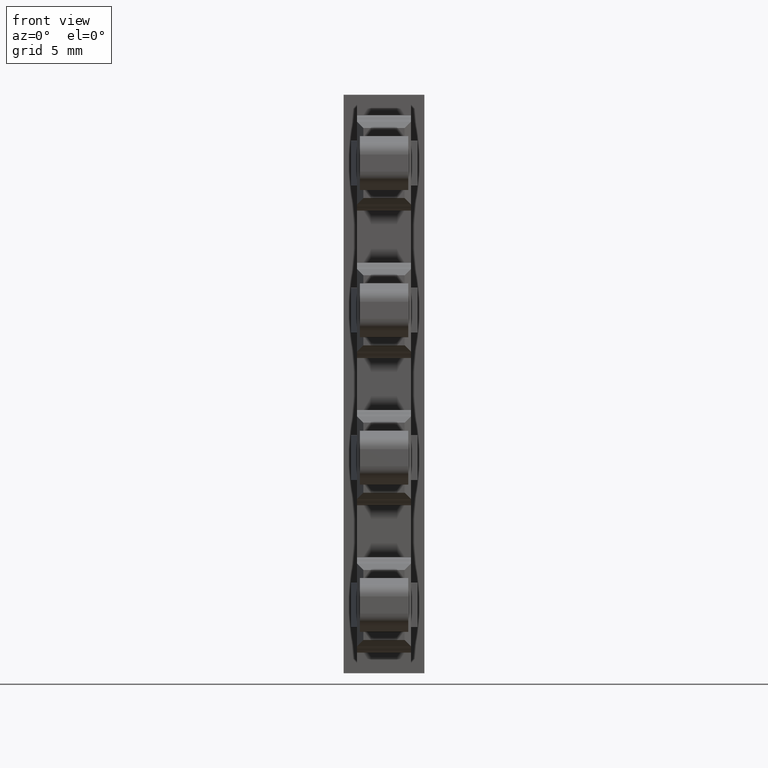
[diagram: clean part render]
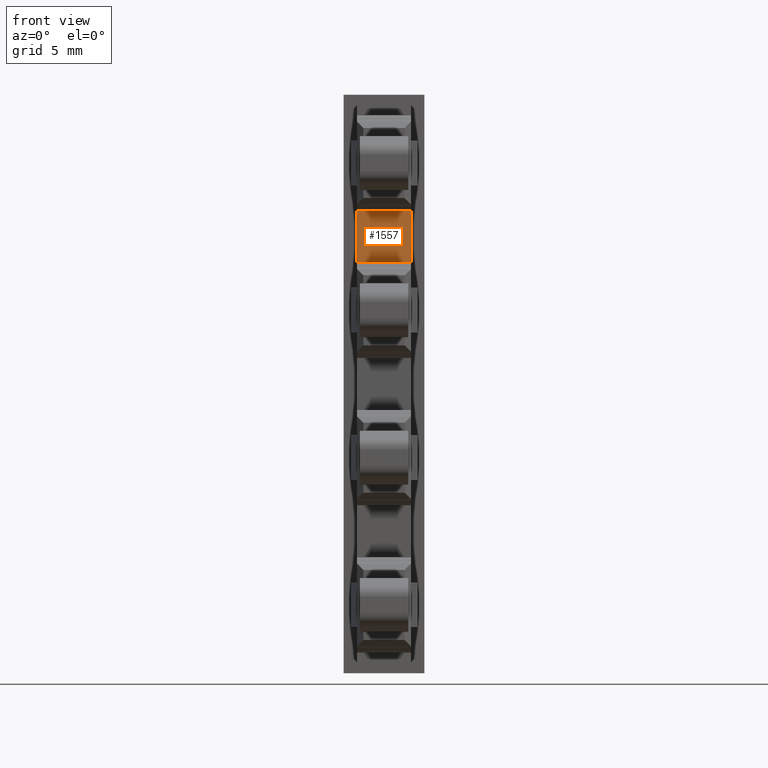
[diagram: same view with one face highlighted and labeled with its STEP entity id]
A machine part, front view. The second image highlights one B-rep face of the part: STEP entity #1557.
In plain terms, the highlighted planar face has unit normal (0, -1, 0).
Its self-contained STEP definition (entity closure, byte-faithful):
#186 = EDGE_LOOP ( 'NONE', ( #673, #680, #695, #671 ) ) ;
#248 = VERTEX_POINT ( 'NONE', #2199 ) ;
#270 = VERTEX_POINT ( 'NONE', #2258 ) ;
#518 = VERTEX_POINT ( 'NONE', #2442 ) ;
#523 = VERTEX_POINT ( 'NONE', #2432 ) ;
#671 = ORIENTED_EDGE ( 'NONE', *, *, #1201, .T. ) ;
#673 = ORIENTED_EDGE ( 'NONE', *, *, #1078, .F. ) ;
#680 = ORIENTED_EDGE ( 'NONE', *, *, #1282, .T. ) ;
#695 = ORIENTED_EDGE ( 'NONE', *, *, #1049, .T. ) ;
#1049 = EDGE_CURVE ( 'NONE', #523, #518, #2764, .T. ) ;
#1078 = EDGE_CURVE ( 'NONE', #270, #248, #1645, .T. ) ;
#1201 = EDGE_CURVE ( 'NONE', #518, #248, #3825, .T. ) ;
#1282 = EDGE_CURVE ( 'NONE', #270, #523, #4061, .T. ) ;
#1557 = ADVANCED_FACE ( 'NONE', ( #4728 ), #4726, .T. ) ;
#1645 = LINE ( 'NONE', #1676, #3080 ) ;
#1666 = DIRECTION ( 'NONE',  ( 7.193572994224081300E-015, 1.901732946337204600E-028, -1.000000000000000000 ) ) ;
#1676 = CARTESIAN_POINT ( 'NONE',  ( 112.2452529172781700, 252.6435672046369800, 222.8398226793859700 ) ) ;
#2199 = CARTESIAN_POINT ( 'NONE',  ( 112.2452529172785900, 252.6435672046369800, 163.6898226793860000 ) ) ;
#2258 = CARTESIAN_POINT ( 'NONE',  ( 112.2452529172785600, 252.6435672046369800, 166.5898226793864900 ) ) ;
#2432 = CARTESIAN_POINT ( 'NONE',  ( 109.2452529172785300, 252.6435672046369800, 166.5898226793864900 ) ) ;
#2442 = CARTESIAN_POINT ( 'NONE',  ( 109.2452529172786500, 252.6435672046369800, 163.6898226793859700 ) ) ;
#2745 = DIRECTION ( 'NONE',  ( 0.0000000000000000000, -0.0000000000000000000, -1.000000000000000000 ) ) ;
#2758 = CARTESIAN_POINT ( 'NONE',  ( 109.2452529172785300, 252.6435672046369800, 175.9023824794820100 ) ) ;
#2764 = LINE ( 'NONE', #2758, #3007 ) ;
#2868 = AXIS2_PLACEMENT_3D ( 'NONE', #4687, #4704, #4729 ) ;
#3007 = VECTOR ( 'NONE', #2745, 1000.000000000000000 ) ;
#3080 = VECTOR ( 'NONE', #1666, 1000.000000000000000 ) ;
#3205 = VECTOR ( 'NONE', #3841, 1000.000000000000000 ) ;
#3299 = VECTOR ( 'NONE', #4121, 1000.000000000000000 ) ;
#3825 = LINE ( 'NONE', #3830, #3205 ) ;
#3830 = CARTESIAN_POINT ( 'NONE',  ( 112.2452529172789900, 252.6435672046369800, 163.6898226793860000 ) ) ;
#3841 = DIRECTION ( 'NONE',  ( 1.000000000000000000, -0.0000000000000000000, 7.193572994224081300E-015 ) ) ;
#4061 = LINE ( 'NONE', #4079, #3299 ) ;
#4079 = CARTESIAN_POINT ( 'NONE',  ( 110.8605667310649900, 252.6435672046369800, 166.5898226793864900 ) ) ;
#4121 = DIRECTION ( 'NONE',  ( -1.000000000000000000, -0.0000000000000000000, -0.0000000000000000000 ) ) ;
#4687 = CARTESIAN_POINT ( 'NONE',  ( 110.8605667310649900, 252.6435672046369800, 175.9023824794820100 ) ) ;
#4704 = DIRECTION ( 'NONE',  ( 0.0000000000000000000, -1.000000000000000000, 0.0000000000000000000 ) ) ;
#4726 = PLANE ( 'NONE',  #2868 ) ;
#4728 = FACE_OUTER_BOUND ( 'NONE', #186, .T. ) ;
#4729 = DIRECTION ( 'NONE',  ( 0.0000000000000000000, -0.0000000000000000000, -1.000000000000000000 ) ) ;